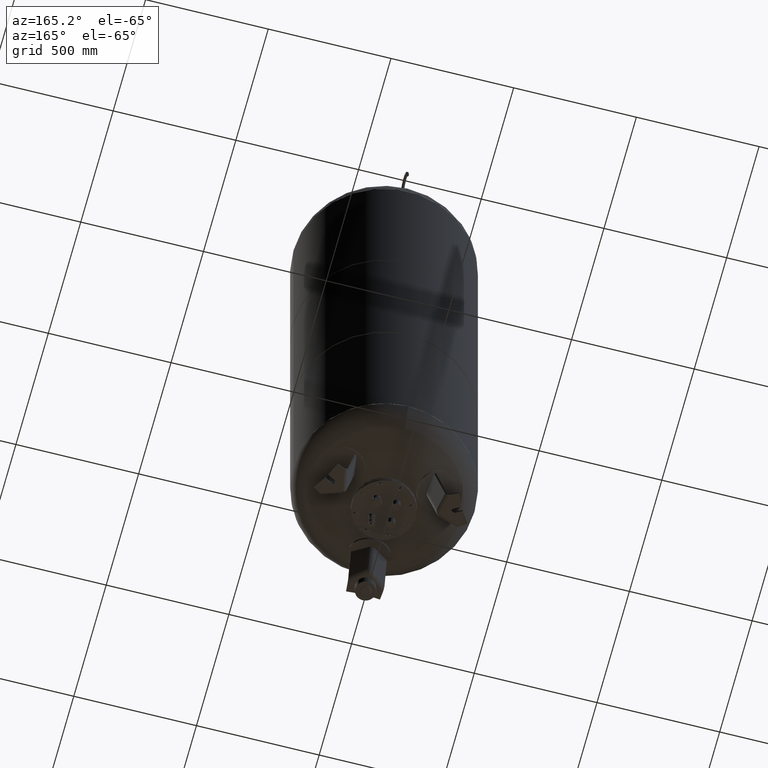
[diagram: clean part render]
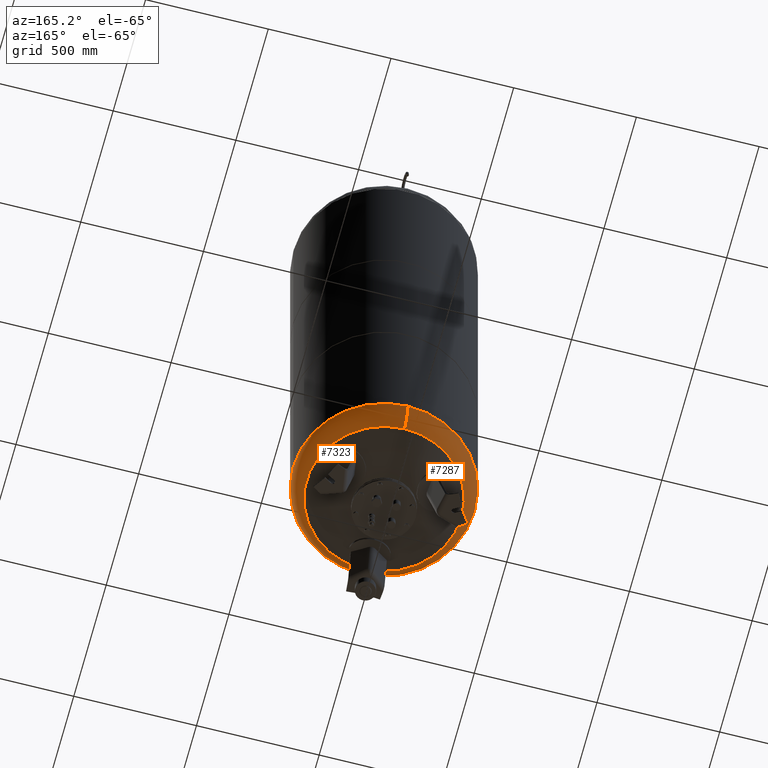
[diagram: same view with one multi-face feature highlighted, each face labeled with its STEP entity id]
A machine part, auxiliary view. The highlighted faces form ONE feature: a constant-radius fillet chain: 2 tangent blend faces with common blend radius 115.5 mm. The faces share edges in the B-rep.
Their STEP definitions:
[1] entity #7323 (Torus):
#7209=CARTESIAN_POINT('',(370.0,1.062956E-014,368.793879611869560));
#7210=VERTEX_POINT('',#7209);
#7217=CARTESIAN_POINT('',(-4.531044E-014,369.999999999999940,368.793879611869610));
#7218=VERTEX_POINT('',#7217);
#7219=CARTESIAN_POINT('',(0.0,-3.468087E-014,368.793879611869560));
#7220=DIRECTION('',(0.0,0.0,1.0));
#7221=DIRECTION('',(-1.0,0.0,0.0));
#7222=AXIS2_PLACEMENT_3D('',#7219,#7220,#7221);
#7223=CIRCLE('',#7222,370.0);
#7224=EDGE_CURVE('',#7210,#7218,#7223,.T.);
#7241=CARTESIAN_POINT('',(0.0,-370.000000000000060,368.793879611869500));
#7242=VERTEX_POINT('',#7241);
#7243=CARTESIAN_POINT('',(0.0,-315.931034482758610,270.985505725079410));
#7244=VERTEX_POINT('',#7243);
#7245=CARTESIAN_POINT('',(0.0,-254.500000000000060,368.793879611869500));
#7246=DIRECTION('',(1.0,0.0,0.0));
#7247=DIRECTION('',(0.0,-1.0,0.0));
#7248=AXIS2_PLACEMENT_3D('',#7245,#7246,#7247);
#7249=CIRCLE('',#7248,115.500000000000000);
#7250=EDGE_CURVE('',#7242,#7244,#7249,.T.);
#7260=CARTESIAN_POINT('',(-3.868912E-014,315.931034482758610,270.985505725079630));
#7261=VERTEX_POINT('',#7260);
#7262=CARTESIAN_POINT('',(-3.116623E-014,254.500000000000000,368.793879611869610));
#7263=DIRECTION('',(-1.0,0.0,0.0));
#7264=DIRECTION('',(0.0,1.0,0.0));
#7265=AXIS2_PLACEMENT_3D('',#7262,#7263,#7264);
#7266=CIRCLE('',#7265,115.500000000000000);
#7267=EDGE_CURVE('',#7218,#7261,#7266,.T.);
#7295=CARTESIAN_POINT('',(0.0,-1.671377E-014,270.985505725079520));
#7296=DIRECTION('',(0.0,0.0,1.0));
#7297=DIRECTION('',(-1.0,0.0,0.0));
#7298=AXIS2_PLACEMENT_3D('',#7295,#7296,#7297);
#7299=CIRCLE('',#7298,315.931034482758610);
#7300=EDGE_CURVE('',#7244,#7261,#7299,.T.);
#7305=CARTESIAN_POINT('',(0.0,-3.468087E-014,368.793879611869560));
#7306=DIRECTION('',(0.0,-1.836970E-016,1.0));
#7307=DIRECTION('',(0.0,-1.0,0.0));
#7308=AXIS2_PLACEMENT_3D('',#7305,#7306,#7307);
#7309=TOROIDAL_SURFACE('',#7308,254.500000000000030,115.500000000000000);
#7310=ORIENTED_EDGE('',*,*,#7250,.T.);
#7311=ORIENTED_EDGE('',*,*,#7300,.T.);
#7312=ORIENTED_EDGE('',*,*,#7267,.F.);
#7313=ORIENTED_EDGE('',*,*,#7224,.F.);
#7314=CARTESIAN_POINT('',(0.0,-3.468087E-014,368.793879611869560));
#7315=DIRECTION('',(0.0,0.0,1.0));
#7316=DIRECTION('',(-1.0,0.0,0.0));
#7317=AXIS2_PLACEMENT_3D('',#7314,#7315,#7316);
#7318=CIRCLE('',#7317,370.0);
#7319=EDGE_CURVE('',#7242,#7210,#7318,.T.);
#7320=ORIENTED_EDGE('',*,*,#7319,.F.);
#7321=EDGE_LOOP('',(#7310,#7311,#7312,#7313,#7320));
#7322=FACE_OUTER_BOUND('',#7321,.T.);
#7323=ADVANCED_FACE('',(#7322),#7309,.T.);
[2] entity #7287 (Torus):
#7192=CARTESIAN_POINT('',(-370.0,-3.468087E-014,368.793879611869560));
#7193=VERTEX_POINT('',#7192);
#7217=CARTESIAN_POINT('',(-4.531044E-014,369.999999999999940,368.793879611869610));
#7218=VERTEX_POINT('',#7217);
#7226=CARTESIAN_POINT('',(0.0,-3.468087E-014,368.793879611869560));
#7227=DIRECTION('',(0.0,0.0,1.0));
#7228=DIRECTION('',(-1.0,0.0,0.0));
#7229=AXIS2_PLACEMENT_3D('',#7226,#7227,#7228);
#7230=CIRCLE('',#7229,370.0);
#7231=EDGE_CURVE('',#7218,#7193,#7230,.T.);
#7236=CARTESIAN_POINT('',(0.0,-3.468087E-014,368.793879611869560));
#7237=DIRECTION('',(0.0,-1.836970E-016,1.0));
#7238=DIRECTION('',(0.0,-1.0,0.0));
#7239=AXIS2_PLACEMENT_3D('',#7236,#7237,#7238);
#7240=TOROIDAL_SURFACE('',#7239,254.500000000000030,115.500000000000000);
#7241=CARTESIAN_POINT('',(0.0,-370.000000000000060,368.793879611869500));
#7242=VERTEX_POINT('',#7241);
#7243=CARTESIAN_POINT('',(0.0,-315.931034482758610,270.985505725079410));
#7244=VERTEX_POINT('',#7243);
#7245=CARTESIAN_POINT('',(0.0,-254.500000000000060,368.793879611869500));
#7246=DIRECTION('',(1.0,0.0,0.0));
#7247=DIRECTION('',(0.0,-1.0,0.0));
#7248=AXIS2_PLACEMENT_3D('',#7245,#7246,#7247);
#7249=CIRCLE('',#7248,115.500000000000000);
#7250=EDGE_CURVE('',#7242,#7244,#7249,.T.);
#7251=ORIENTED_EDGE('',*,*,#7250,.F.);
#7252=CARTESIAN_POINT('',(0.0,-3.468087E-014,368.793879611869560));
#7253=DIRECTION('',(0.0,0.0,1.0));
#7254=DIRECTION('',(-1.0,0.0,0.0));
#7255=AXIS2_PLACEMENT_3D('',#7252,#7253,#7254);
#7256=CIRCLE('',#7255,370.0);
#7257=EDGE_CURVE('',#7193,#7242,#7256,.T.);
#7258=ORIENTED_EDGE('',*,*,#7257,.F.);
#7259=ORIENTED_EDGE('',*,*,#7231,.F.);
#7260=CARTESIAN_POINT('',(-3.868912E-014,315.931034482758610,270.985505725079630));
#7261=VERTEX_POINT('',#7260);
#7262=CARTESIAN_POINT('',(-3.116623E-014,254.500000000000000,368.793879611869610));
#7263=DIRECTION('',(-1.0,0.0,0.0));
#7264=DIRECTION('',(0.0,1.0,0.0));
#7265=AXIS2_PLACEMENT_3D('',#7262,#7263,#7264);
#7266=CIRCLE('',#7265,115.500000000000000);
#7267=EDGE_CURVE('',#7218,#7261,#7266,.T.);
#7268=ORIENTED_EDGE('',*,*,#7267,.T.);
#7269=CARTESIAN_POINT('',(-315.931034482758610,-1.671377E-014,270.985505725079520));
#7270=VERTEX_POINT('',#7269);
#7271=CARTESIAN_POINT('',(0.0,-1.671377E-014,270.985505725079520));
#7272=DIRECTION('',(0.0,0.0,1.0));
#7273=DIRECTION('',(-1.0,0.0,0.0));
#7274=AXIS2_PLACEMENT_3D('',#7271,#7272,#7273);
#7275=CIRCLE('',#7274,315.931034482758610);
#7276=EDGE_CURVE('',#7261,#7270,#7275,.T.);
#7277=ORIENTED_EDGE('',*,*,#7276,.T.);
#7278=CARTESIAN_POINT('',(0.0,-1.671377E-014,270.985505725079520));
#7279=DIRECTION('',(0.0,0.0,1.0));
#7280=DIRECTION('',(-1.0,0.0,0.0));
#7281=AXIS2_PLACEMENT_3D('',#7278,#7279,#7280);
#7282=CIRCLE('',#7281,315.931034482758610);
#7283=EDGE_CURVE('',#7270,#7244,#7282,.T.);
#7284=ORIENTED_EDGE('',*,*,#7283,.T.);
#7285=EDGE_LOOP('',(#7251,#7258,#7259,#7268,#7277,#7284));
#7286=FACE_OUTER_BOUND('',#7285,.T.);
#7287=ADVANCED_FACE('',(#7286),#7240,.T.);